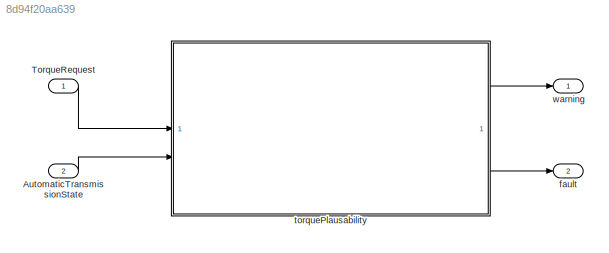
MODEL slx_8d94f20aa639
KIND model
CONFIG AbsTol = auto
CONFIG EnableMultiTasking = off
CONFIG FixedStep = auto
CONFIG MaxStep = auto
CONFIG MinStep = auto
CONFIG RelTol = 1e-3
CONFIG SampleTimeConstraint = Unconstrained
CONFIG SolverName = FixedStepAuto
CONFIG StartTime = 0.0
CONFIG StopTime = 20
BLOCK [Inport] AutomaticTransmissionState
  OutDataTypeStr = Enum: TransmissionState
  Port = 2
BLOCK [Inport] TorqueRequest
  OutDataTypeStr = single
BLOCK [Outport] fault
  OutDataTypeStr = boolean
  Port = 2
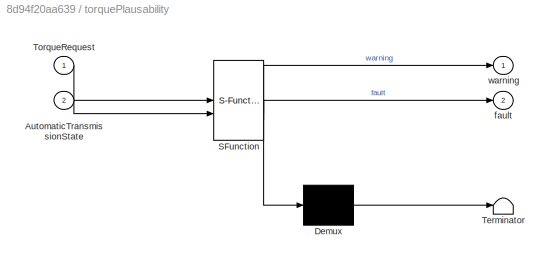
BLOCK [SubSystem] torquePlausability
  ErrorFcn = Stateflow.Translate.translate
  PermitHierarchicalResolution = ExplicitOnly
  SFBlockType = MATLAB Function
  TreatAsAtomicUnit = on
BLOCK [Demux] torquePlausability/ Demux 
  Outputs = 1
BLOCK [S-Function] torquePlausability/ SFunction 
  EnableBusSupport = on
  FunctionName = sf_sfun
  PortCounts = [2 3]
  SFcnIsStateOwnerBlock = off
  SFunctionDeploymentMode = off
  Tag = Stateflow S-Function 2
BLOCK [Terminator] torquePlausability/ Terminator 
BLOCK [Inport] torquePlausability/AutomaticTransmissionState
  Port = 2
BLOCK [Inport] torquePlausability/TorqueRequest
BLOCK [Outport] torquePlausability/fault
  Port = 2
BLOCK [Outport] torquePlausability/warning
BLOCK [Outport] warning
  OutDataTypeStr = boolean
LINE AutomaticTransmissionState:1 -> torquePlausability:2
LINE TorqueRequest:1 -> torquePlausability:1
LINE torquePlausability:1 -> warning:1
LINE torquePlausability:2 -> fault:1
CHART torquePlausability states=1 transitions=1
  STATE_LABEL 'eML_blk_kernel()'
  STATE_LABEL 'SCRIPT:\nfunction [warning, fault] = torquePlausability(TorqueRequest,AutomaticTransmissionState)\n% initialization\nwarning = boolean(0);\nfault = boolean(0);\n\nif (TorqueRequest > 80 || TorqueRequest < -80 )\n    warning = boolean(1);\n    fault = boolean(1);\nelseif((AutomaticTransmissionState ~= TransmissionState.Reverse && AutomaticTransmissionState ~= TransmissionState.Brake ) && TorqueRequest < 0 )...<+253ch>'
CHART  states=0 transitions=0
